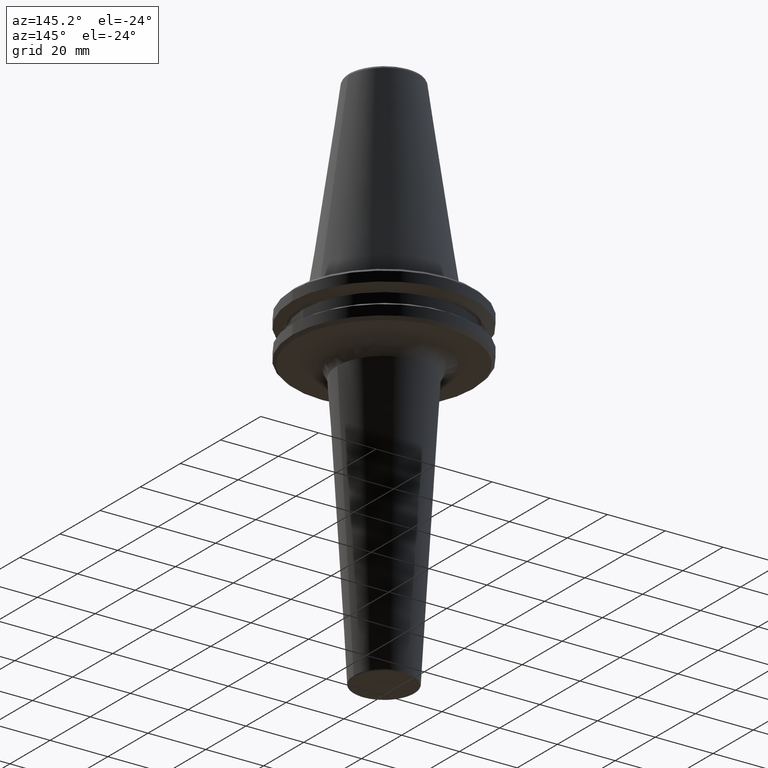
[diagram: clean part render]
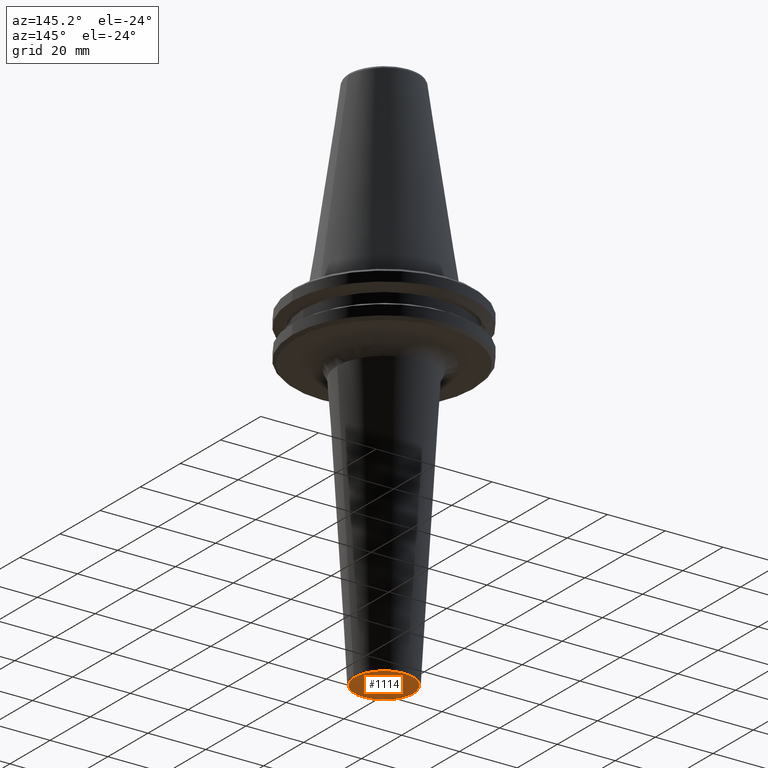
[diagram: same view with one face highlighted and labeled with its STEP entity id]
A machine part, auxiliary view. The second image highlights one B-rep face of the part: STEP entity #1114.
In plain terms, the highlighted planar face has unit normal (0, 0, -1).
Its self-contained STEP definition (entity closure, byte-faithful):
#166 = DIRECTION ( 'NONE',  ( 0.0000000000000000000, 0.0000000000000000000, -1.000000000000000000 ) ) ;
#189 = CARTESIAN_POINT ( 'NONE',  ( -10.12328064683621800, 1.249523911052976600E-015, -119.1000000000000100 ) ) ;
#262 = CARTESIAN_POINT ( 'NONE',  ( 0.0000000000000000000, 0.0000000000000000000, -119.1000000000000100 ) ) ;
#281 =( BOUNDED_CURVE ( )  B_SPLINE_CURVE ( 3, ( #948, #399, #1224, #513 ),
 .UNSPECIFIED., .F., .F. ) 
 B_SPLINE_CURVE_WITH_KNOTS ( ( 4, 4 ),
 ( 0.0000000000000000000, 1.000000000000000000 ),
 .UNSPECIFIED. ) 
 CURVE ( )  GEOMETRIC_REPRESENTATION_ITEM ( )  RATIONAL_B_SPLINE_CURVE ( ( 1.000000000000000000, 0.3333333333333333700, 0.3333333333333333700, 1.000000000000000000 ) ) 
 REPRESENTATION_ITEM ( '' )  );
#366 = CARTESIAN_POINT ( 'NONE',  ( -10.12328064683621800, 1.249523911052976600E-015, -119.1000000000000100 ) ) ;
#395 = VERTEX_POINT ( 'NONE', #366 ) ;
#399 = CARTESIAN_POINT ( 'NONE',  ( -10.12328064683622000, -20.24656129367243200, -119.1000000000000200 ) ) ;
#415 = VERTEX_POINT ( 'NONE', #1319 ) ;
#511 = AXIS2_PLACEMENT_3D ( 'NONE', #262, #166, #965 ) ;
#513 = CARTESIAN_POINT ( 'NONE',  ( 10.12328064683621800, 0.0000000000000000000, -119.1000000000000100 ) ) ;
#653 = FACE_OUTER_BOUND ( 'NONE', #659, .T. ) ;
#654 =( BOUNDED_CURVE ( )  B_SPLINE_CURVE ( 3, ( #738, #1353, #871, #189 ),
 .UNSPECIFIED., .F., .F. ) 
 B_SPLINE_CURVE_WITH_KNOTS ( ( 4, 4 ),
 ( 0.0000000000000000000, 1.000000000000000000 ),
 .UNSPECIFIED. ) 
 CURVE ( )  GEOMETRIC_REPRESENTATION_ITEM ( )  RATIONAL_B_SPLINE_CURVE ( ( 1.000000000000000000, 0.3333333333333333700, 0.3333333333333333700, 1.000000000000000000 ) ) 
 REPRESENTATION_ITEM ( '' )  );
#659 = EDGE_LOOP ( 'NONE', ( #1198, #767 ) ) ;
#719 = PLANE ( 'NONE',  #511 ) ;
#738 = CARTESIAN_POINT ( 'NONE',  ( 10.12328064683621800, 0.0000000000000000000, -119.1000000000000100 ) ) ;
#767 = ORIENTED_EDGE ( 'NONE', *, *, #1405, .F. ) ;
#871 = CARTESIAN_POINT ( 'NONE',  ( -10.12328064683621600, 20.24656129367243200, -119.1000000000000200 ) ) ;
#948 = CARTESIAN_POINT ( 'NONE',  ( -10.12328064683621800, 1.249523911052976600E-015, -119.1000000000000100 ) ) ;
#965 = DIRECTION ( 'NONE',  ( -1.000000000000000000, 0.0000000000000000000, -0.0000000000000000000 ) ) ;
#1114 = ADVANCED_FACE ( 'NONE', ( #653 ), #719, .T. ) ;
#1198 = ORIENTED_EDGE ( 'NONE', *, *, #1336, .F. ) ;
#1224 = CARTESIAN_POINT ( 'NONE',  ( 10.12328064683621800, -20.24656129367243200, -119.1000000000000200 ) ) ;
#1319 = CARTESIAN_POINT ( 'NONE',  ( 10.12328064683621800, 0.0000000000000000000, -119.1000000000000100 ) ) ;
#1336 = EDGE_CURVE ( 'NONE', #415, #395, #654, .T. ) ;
#1353 = CARTESIAN_POINT ( 'NONE',  ( 10.12328064683621800, 20.24656129367243200, -119.1000000000000200 ) ) ;
#1405 = EDGE_CURVE ( 'NONE', #395, #415, #281, .T. ) ;